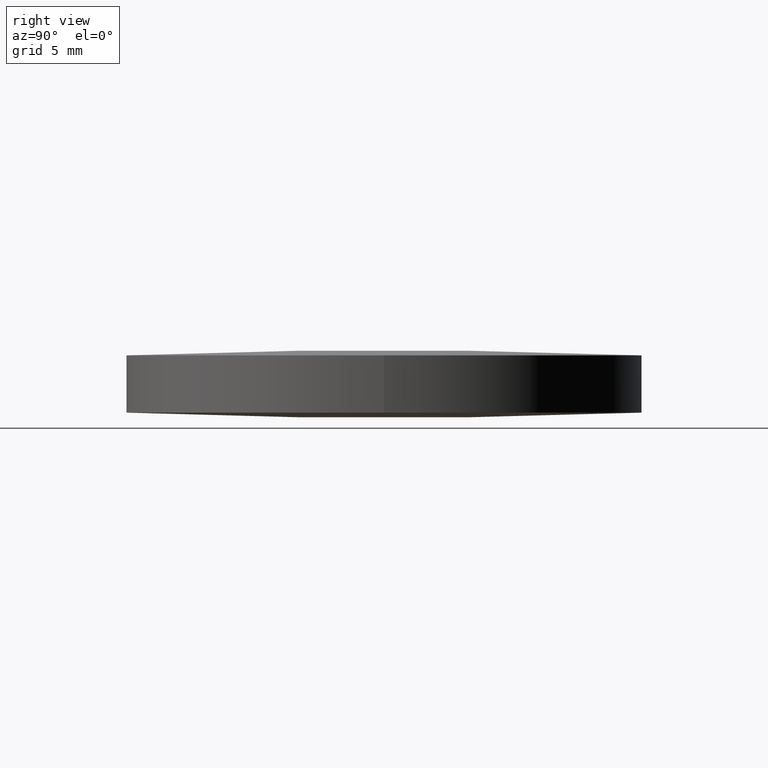
[diagram: clean part render]
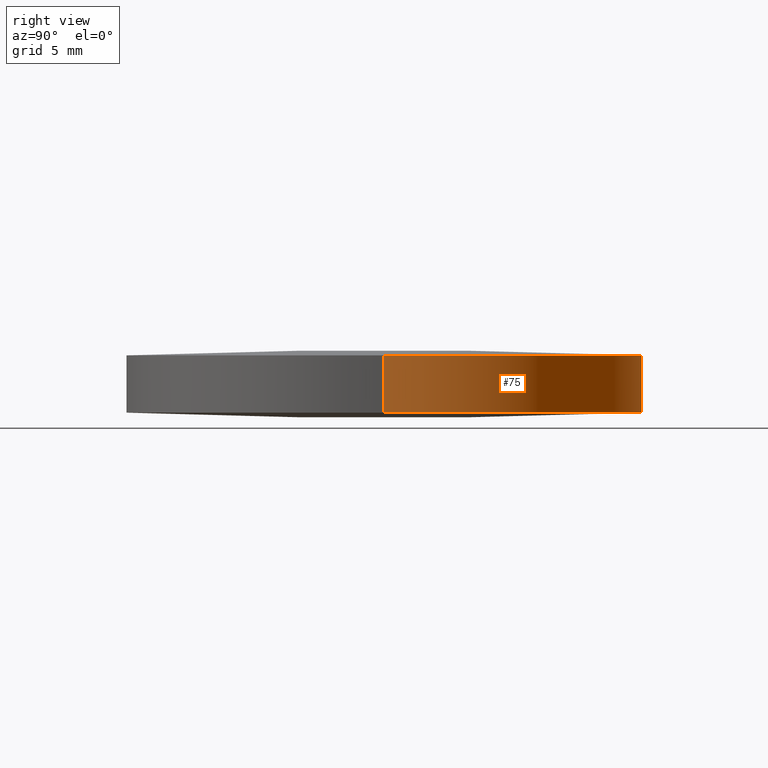
[diagram: same view with one face highlighted and labeled with its STEP entity id]
A machine part, right view. The second image highlights one B-rep face of the part: STEP entity #75.
In plain terms, the highlighted cylindrical surface (partial cylindrical patch) has radius 19.05 mm, axis along (0, 0, 1).
Its self-contained STEP definition (entity closure, byte-faithful):
#2 = ORIENTED_EDGE ( 'NONE', *, *, #119, .F. ) ;
#9 = CARTESIAN_POINT ( 'NONE',  ( 19.04999999999999700, -8.881784197001250400E-016, 4.618056245691300400 ) ) ;
#11 = DIRECTION ( 'NONE',  ( 1.000000000000000000, 0.0000000000000000000, 0.0000000000000000000 ) ) ;
#20 = AXIS2_PLACEMENT_3D ( 'NONE', #242, #197, #80 ) ;
#27 = LINE ( 'NONE', #130, #135 ) ;
#37 = ORIENTED_EDGE ( 'NONE', *, *, #244, .F. ) ;
#39 = EDGE_CURVE ( 'NONE', #56, #210, #100, .T. ) ;
#41 = VERTEX_POINT ( 'NONE', #222 ) ;
#56 = VERTEX_POINT ( 'NONE', #169 ) ;
#59 = CARTESIAN_POINT ( 'NONE',  ( -4.662936703425659800E-015, -8.881784197001250400E-016, 0.3819437543087000300 ) ) ;
#61 = EDGE_CURVE ( 'NONE', #89, #41, #196, .T. ) ;
#62 = CARTESIAN_POINT ( 'NONE',  ( -19.05000000000000400, 1.444773732675583000E-015, 0.3819437543087000900 ) ) ;
#69 = CIRCLE ( 'NONE', #142, 19.05000000000000100 ) ;
#75 = ADVANCED_FACE ( 'NONE', ( #288 ), #84, .T. ) ;
#80 = DIRECTION ( 'NONE',  ( 1.000000000000000000, 8.881784197001252300E-016, 0.0000000000000000000 ) ) ;
#82 = CARTESIAN_POINT ( 'NONE',  ( -9.571035216865770700E-014, 19.05000000000014300, 0.3819437543087111400 ) ) ;
#84 = CYLINDRICAL_SURFACE ( 'NONE', #183, 19.05000000000000100 ) ;
#89 = VERTEX_POINT ( 'NONE', #62 ) ;
#97 = AXIS2_PLACEMENT_3D ( 'NONE', #59, #228, #153 ) ;
#98 = ORIENTED_EDGE ( 'NONE', *, *, #265, .F. ) ;
#100 = CIRCLE ( 'NONE', #20, 19.05000000000000100 ) ;
#112 = VECTOR ( 'NONE', #269, 1000.000000000000000 ) ;
#117 = EDGE_LOOP ( 'NONE', ( #98, #221, #216, #166, #37, #2 ) ) ;
#119 = EDGE_CURVE ( 'NONE', #225, #255, #267, .T. ) ;
#130 = CARTESIAN_POINT ( 'NONE',  ( 19.04999999999999700, -8.881784197001250400E-016, 0.3819437543086999200 ) ) ;
#135 = VECTOR ( 'NONE', #156, 1000.000000000000000 ) ;
#142 = AXIS2_PLACEMENT_3D ( 'NONE', #227, #252, #11 ) ;
#148 = AXIS2_PLACEMENT_3D ( 'NONE', #254, #235, #185 ) ;
#153 = DIRECTION ( 'NONE',  ( 1.000000000000000000, -1.776356839400250500E-015, -2.845674993400274200E-018 ) ) ;
#156 = DIRECTION ( 'NONE',  ( 2.913971193241879900E-018, 1.358596498406960000E-034, 1.000000000000000000 ) ) ;
#166 = ORIENTED_EDGE ( 'NONE', *, *, #39, .T. ) ;
#168 = EDGE_CURVE ( 'NONE', #41, #56, #69, .T. ) ;
#169 = CARTESIAN_POINT ( 'NONE',  ( 9.571035216865772000E-014, 19.05000000000014300, 4.618056245691290600 ) ) ;
#171 = DIRECTION ( 'NONE',  ( 2.913971193241879900E-018, 1.358596498406960000E-034, 1.000000000000000000 ) ) ;
#174 = CARTESIAN_POINT ( 'NONE',  ( -4.662936703425659800E-015, -8.881784197001250400E-016, 0.3819437543086999800 ) ) ;
#183 = AXIS2_PLACEMENT_3D ( 'NONE', #174, #171, #195 ) ;
#185 = DIRECTION ( 'NONE',  ( 1.000000000000000000, 8.881784197001252300E-016, -2.845674993400274200E-018 ) ) ;
#195 = DIRECTION ( 'NONE',  ( 1.000000000000000000, 0.0000000000000000000, -2.845674993400274200E-018 ) ) ;
#196 = LINE ( 'NONE', #271, #112 ) ;
#197 = DIRECTION ( 'NONE',  ( -2.913971193241879900E-018, -1.358596498406960000E-034, -1.000000000000000000 ) ) ;
#210 = VERTEX_POINT ( 'NONE', #9 ) ;
#216 = ORIENTED_EDGE ( 'NONE', *, *, #168, .T. ) ;
#221 = ORIENTED_EDGE ( 'NONE', *, *, #61, .T. ) ;
#222 = CARTESIAN_POINT ( 'NONE',  ( -19.05000000000000400, 1.444773732675583000E-015, 4.618056245691300400 ) ) ;
#225 = VERTEX_POINT ( 'NONE', #82 ) ;
#227 = CARTESIAN_POINT ( 'NONE',  ( -4.650592793654439200E-015, -8.881784197001250400E-016, 4.618056245691300400 ) ) ;
#228 = DIRECTION ( 'NONE',  ( -2.913971193241879900E-018, -1.358596498406960000E-034, -1.000000000000000000 ) ) ;
#235 = DIRECTION ( 'NONE',  ( -2.913971193241879900E-018, -1.358596498406960000E-034, -1.000000000000000000 ) ) ;
#236 = CIRCLE ( 'NONE', #148, 19.05000000000000100 ) ;
#242 = CARTESIAN_POINT ( 'NONE',  ( -4.650592793654439200E-015, -8.881784197001250400E-016, 4.618056245691300400 ) ) ;
#244 = EDGE_CURVE ( 'NONE', #255, #210, #27, .T. ) ;
#252 = DIRECTION ( 'NONE',  ( -2.913971193241879900E-018, -1.358596498406960000E-034, -1.000000000000000000 ) ) ;
#254 = CARTESIAN_POINT ( 'NONE',  ( -4.662936703425659800E-015, -8.881784197001250400E-016, 0.3819437543087000300 ) ) ;
#255 = VERTEX_POINT ( 'NONE', #280 ) ;
#265 = EDGE_CURVE ( 'NONE', #89, #225, #236, .T. ) ;
#267 = CIRCLE ( 'NONE', #97, 19.05000000000000100 ) ;
#269 = DIRECTION ( 'NONE',  ( 2.913971193241879900E-018, 1.358596498406960000E-034, 1.000000000000000000 ) ) ;
#271 = CARTESIAN_POINT ( 'NONE',  ( -19.05000000000000400, 1.444773732675583000E-015, 0.3819437543087000300 ) ) ;
#280 = CARTESIAN_POINT ( 'NONE',  ( 19.04999999999999700, -8.881784197001250400E-016, 0.3819437543086999800 ) ) ;
#288 = FACE_OUTER_BOUND ( 'NONE', #117, .T. ) ;